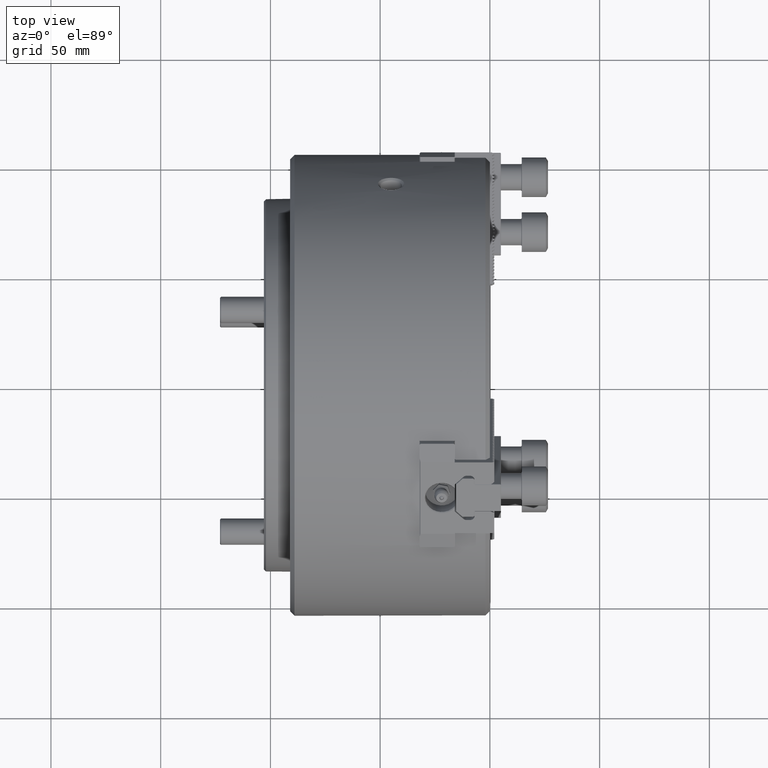
[diagram: clean part render]
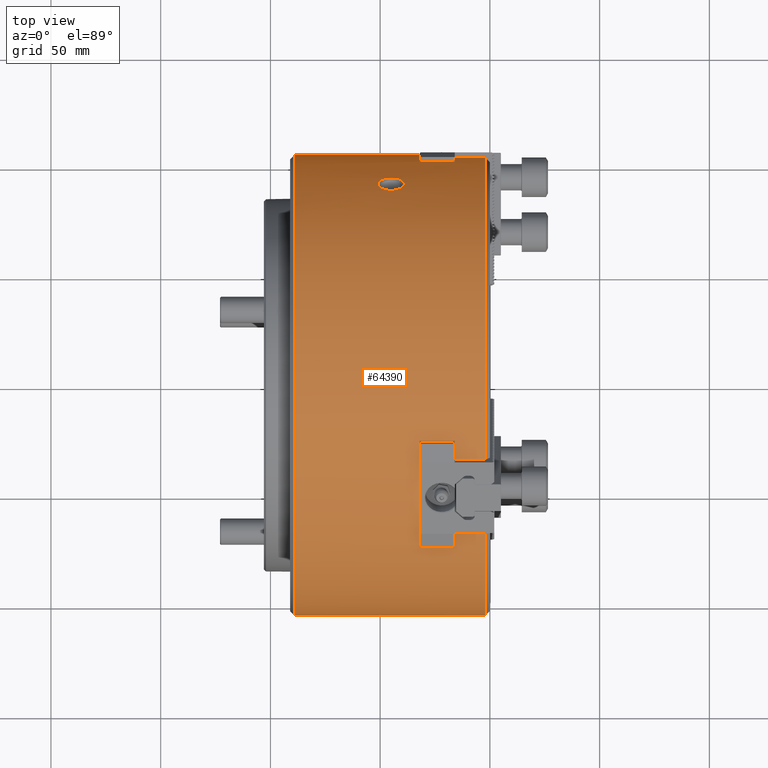
[diagram: same view with one face highlighted and labeled with its STEP entity id]
A machine part, top view. The second image highlights one B-rep face of the part: STEP entity #64390.
In plain terms, the highlighted cylindrical surface (bore or boss wall) has radius 105 mm, axis along (-1, 0, 0).
Its self-contained STEP definition (entity closure, byte-faithful):
#1532=LINE('',#86500,#6245);
#1971=LINE('',#87519,#6684);
#2627=LINE('',#89630,#7340);
#3067=LINE('',#90651,#7780);
#3723=LINE('',#92762,#8436);
#4163=LINE('',#93783,#8876);
#4673=LINE('',#95518,#9386);
#4697=LINE('',#95738,#9410);
#4720=LINE('',#95957,#9433);
#4721=LINE('',#95965,#9434);
#4722=LINE('',#95970,#9435);
#4723=LINE('',#95978,#9436);
#6245=VECTOR('',#72622,1000.);
#6684=VECTOR('',#73551,1000.);
#7340=VECTOR('',#74771,1000.);
#7780=VECTOR('',#75703,1000.);
#8436=VECTOR('',#76923,1000.);
#8876=VECTOR('',#77855,1000.);
#9386=VECTOR('',#79579,1000.);
#9410=VECTOR('',#79681,1000.);
#9433=VECTOR('',#79840,1000.);
#9434=VECTOR('',#79851,1000.);
#9435=VECTOR('',#79856,1000.);
#9436=VECTOR('',#79867,1000.);
#9788=ELLIPSE('',#68062,148.492424049174,105.);
#9789=ELLIPSE('',#68064,148.492424049174,105.);
#9790=ELLIPSE('',#68069,148.492424049174,105.);
#9791=ELLIPSE('',#68071,148.492424049174,105.);
#9792=ELLIPSE('',#68076,148.492424049174,105.);
#9793=ELLIPSE('',#68077,148.492424049174,105.);
#10204=B_SPLINE_CURVE_WITH_KNOTS('',3,(#95988,#95989,#95990,#95991,#95992,
#95993,#95994,#95995,#95996,#95997,#95998,#95999,#96000,#96001,#96002),
 .UNSPECIFIED.,.T.,.F.,(1,1,1,1,1,1,1,1,1,1,1,1,1,1,1,1,1,1,1),(-0.00927433492825341,
-0.00463716746412671,-0.00231858373206335,0.,0.00231858373206335,0.00463716746412671,
0.00927433492825341,0.0139115023923801,0.0162300861244435,0.0185486698565068,
0.0208672535885702,0.0231858373206335,0.0278230047847602,0.0324601722488869,
0.0347787559809503,0.0370973397130137,0.039415923445077,0.0417345071771404,
0.0463716746412671),.UNSPECIFIED.);
#10205=B_SPLINE_CURVE_WITH_KNOTS('',3,(#96004,#96005,#96006,#96007,#96008,
#96009,#96010,#96011,#96012,#96013,#96014,#96015,#96016,#96017,#96018),
 .UNSPECIFIED.,.T.,.F.,(1,1,1,1,1,1,1,1,1,1,1,1,1,1,1,1,1,1,1),(-0.0115989388835901,
-0.00927915110687206,-0.00463957555343603,0.,0.00231978777671801,0.00463957555343603,
0.00695936333015404,0.00927915110687206,0.0139187266603081,0.0185583022137441,
0.0208780899904621,0.0231978777671801,0.0255176655438982,0.0278374533206162,
0.0324770288740522,0.0371166044274882,0.0394363922042062,0.0417561799809242,
0.0440759677576423),.UNSPECIFIED.);
#23983=ORIENTED_EDGE('',*,*,#31603,.F.);
#23984=ORIENTED_EDGE('',*,*,#31762,.T.);
#23985=ORIENTED_EDGE('',*,*,#28180,.T.);
#23986=ORIENTED_EDGE('',*,*,#31763,.T.);
#23987=ORIENTED_EDGE('',*,*,#31764,.T.);
#23988=ORIENTED_EDGE('',*,*,#31765,.T.);
#23989=ORIENTED_EDGE('',*,*,#25768,.T.);
#23990=ORIENTED_EDGE('',*,*,#31766,.T.);
#23991=ORIENTED_EDGE('',*,*,#27778,.T.);
#23992=ORIENTED_EDGE('',*,*,#31767,.F.);
#23993=ORIENTED_EDGE('',*,*,#30850,.F.);
#23994=ORIENTED_EDGE('',*,*,#31768,.F.);
#23995=ORIENTED_EDGE('',*,*,#25787,.F.);
#23996=ORIENTED_EDGE('',*,*,#31769,.F.);
#23997=ORIENTED_EDGE('',*,*,#31770,.F.);
#23998=ORIENTED_EDGE('',*,*,#31771,.F.);
#23999=ORIENTED_EDGE('',*,*,#30774,.T.);
#24000=ORIENTED_EDGE('',*,*,#31772,.F.);
#24001=ORIENTED_EDGE('',*,*,#31773,.T.);
#24002=ORIENTED_EDGE('',*,*,#31774,.T.);
#24003=ORIENTED_EDGE('',*,*,#25796,.T.);
#24004=ORIENTED_EDGE('',*,*,#31775,.T.);
#24005=ORIENTED_EDGE('',*,*,#30371,.T.);
#24006=ORIENTED_EDGE('',*,*,#31776,.T.);
#24007=ORIENTED_EDGE('',*,*,#29553,.F.);
#24008=ORIENTED_EDGE('',*,*,#31777,.F.);
#24009=ORIENTED_EDGE('',*,*,#25773,.F.);
#24010=ORIENTED_EDGE('',*,*,#31778,.F.);
#24011=ORIENTED_EDGE('',*,*,#31779,.F.);
#24012=ORIENTED_EDGE('',*,*,#31780,.F.);
#24013=ORIENTED_EDGE('',*,*,#29477,.T.);
#24014=ORIENTED_EDGE('',*,*,#31781,.F.);
#24015=ORIENTED_EDGE('',*,*,#31677,.T.);
#24016=ORIENTED_EDGE('',*,*,#31782,.T.);
#24017=ORIENTED_EDGE('',*,*,#25782,.T.);
#24018=ORIENTED_EDGE('',*,*,#31783,.T.);
#24019=ORIENTED_EDGE('',*,*,#29074,.T.);
#24020=ORIENTED_EDGE('',*,*,#31659,.F.);
#24021=ORIENTED_EDGE('',*,*,#28256,.F.);
#24022=ORIENTED_EDGE('',*,*,#31784,.F.);
#24023=ORIENTED_EDGE('',*,*,#25759,.F.);
#24024=ORIENTED_EDGE('',*,*,#31785,.F.);
#24025=ORIENTED_EDGE('',*,*,#31786,.T.);
#24026=ORIENTED_EDGE('',*,*,#31787,.F.);
#24027=ORIENTED_EDGE('',*,*,#31788,.F.);
#25759=EDGE_CURVE('',#32391,#32392,#36850,.T.);
#25768=EDGE_CURVE('',#32401,#32400,#36851,.T.);
#25773=EDGE_CURVE('',#32405,#32406,#36852,.T.);
#25782=EDGE_CURVE('',#32415,#32414,#36853,.T.);
#25787=EDGE_CURVE('',#32419,#32420,#36854,.T.);
#25796=EDGE_CURVE('',#32429,#32428,#36855,.T.);
#27778=EDGE_CURVE('',#33906,#33905,#1532,.T.);
#28180=EDGE_CURVE('',#34075,#33865,#37294,.F.);
#28256=EDGE_CURVE('',#34105,#34106,#1971,.T.);
#29074=EDGE_CURVE('',#34765,#34764,#2627,.T.);
#29477=EDGE_CURVE('',#34934,#34724,#37375,.F.);
#29553=EDGE_CURVE('',#34964,#34965,#3067,.T.);
#30371=EDGE_CURVE('',#35624,#35623,#3723,.T.);
#30774=EDGE_CURVE('',#35793,#35583,#37456,.F.);
#30850=EDGE_CURVE('',#35823,#35824,#4163,.T.);
#31603=EDGE_CURVE('',#36315,#36316,#4673,.T.);
#31659=EDGE_CURVE('',#34106,#34764,#37692,.T.);
#31677=EDGE_CURVE('',#36368,#36367,#4697,.T.);
#31762=EDGE_CURVE('',#36315,#34075,#37738,.T.);
#31763=EDGE_CURVE('',#33865,#36422,#37739,.T.);
#31764=EDGE_CURVE('',#36422,#36423,#4720,.T.);
#31765=EDGE_CURVE('',#36423,#32401,#37740,.T.);
#31766=EDGE_CURVE('',#32400,#33906,#9788,.T.);
#31767=EDGE_CURVE('',#35824,#33905,#37741,.T.);
#31768=EDGE_CURVE('',#32420,#35823,#9789,.T.);
#31769=EDGE_CURVE('',#36424,#32419,#37742,.T.);
#31770=EDGE_CURVE('',#36425,#36424,#4721,.T.);
#31771=EDGE_CURVE('',#35793,#36425,#37743,.T.);
#31772=EDGE_CURVE('',#36426,#35583,#37744,.T.);
#31773=EDGE_CURVE('',#36426,#36427,#4722,.T.);
#31774=EDGE_CURVE('',#36427,#32429,#37745,.T.);
#31775=EDGE_CURVE('',#32428,#35624,#9790,.T.);
#31776=EDGE_CURVE('',#35623,#34965,#37746,.T.);
#31777=EDGE_CURVE('',#32406,#34964,#9791,.T.);
#31778=EDGE_CURVE('',#36428,#32405,#37747,.T.);
#31779=EDGE_CURVE('',#36429,#36428,#4723,.T.);
#31780=EDGE_CURVE('',#34934,#36429,#37748,.T.);
#31781=EDGE_CURVE('',#36368,#34724,#37749,.T.);
#31782=EDGE_CURVE('',#36367,#32415,#37750,.T.);
#31783=EDGE_CURVE('',#32414,#34765,#9792,.T.);
#31784=EDGE_CURVE('',#32392,#34105,#9793,.T.);
#31785=EDGE_CURVE('',#36316,#32391,#37751,.T.);
#31786=EDGE_CURVE('',#36430,#36430,#37752,.T.);
#31787=EDGE_CURVE('',#36431,#36431,#10204,.T.);
#31788=EDGE_CURVE('',#36432,#36432,#10205,.T.);
#32391=VERTEX_POINT('',#81628);
#32392=VERTEX_POINT('',#81629);
#32400=VERTEX_POINT('',#81646);
#32401=VERTEX_POINT('',#81648);
#32405=VERTEX_POINT('',#81658);
#32406=VERTEX_POINT('',#81659);
#32414=VERTEX_POINT('',#81676);
#32415=VERTEX_POINT('',#81678);
#32419=VERTEX_POINT('',#81688);
#32420=VERTEX_POINT('',#81689);
#32428=VERTEX_POINT('',#81706);
#32429=VERTEX_POINT('',#81708);
#33865=VERTEX_POINT('',#86247);
#33905=VERTEX_POINT('',#86499);
#33906=VERTEX_POINT('',#86501);
#34075=VERTEX_POINT('',#87293);
#34105=VERTEX_POINT('',#87518);
#34106=VERTEX_POINT('',#87520);
#34724=VERTEX_POINT('',#89377);
#34764=VERTEX_POINT('',#89629);
#34765=VERTEX_POINT('',#89631);
#34934=VERTEX_POINT('',#90425);
#34964=VERTEX_POINT('',#90650);
#34965=VERTEX_POINT('',#90652);
#35583=VERTEX_POINT('',#92509);
#35623=VERTEX_POINT('',#92761);
#35624=VERTEX_POINT('',#92763);
#35793=VERTEX_POINT('',#93557);
#35823=VERTEX_POINT('',#93782);
#35824=VERTEX_POINT('',#93784);
#36315=VERTEX_POINT('',#95517);
#36316=VERTEX_POINT('',#95519);
#36367=VERTEX_POINT('',#95737);
#36368=VERTEX_POINT('',#95739);
#36422=VERTEX_POINT('',#95956);
#36423=VERTEX_POINT('',#95958);
#36424=VERTEX_POINT('',#95964);
#36425=VERTEX_POINT('',#95966);
#36426=VERTEX_POINT('',#95969);
#36427=VERTEX_POINT('',#95971);
#36428=VERTEX_POINT('',#95977);
#36429=VERTEX_POINT('',#95979);
#36430=VERTEX_POINT('',#95987);
#36431=VERTEX_POINT('',#96003);
#36432=VERTEX_POINT('',#96019);
#36850=CIRCLE('',#64961,105.);
#36851=CIRCLE('',#64963,105.);
#36852=CIRCLE('',#64965,105.);
#36853=CIRCLE('',#64967,105.);
#36854=CIRCLE('',#64969,105.);
#36855=CIRCLE('',#64971,105.);
#37294=CIRCLE('',#66255,105.);
#37375=CIRCLE('',#66783,105.);
#37456=CIRCLE('',#67311,105.);
#37692=CIRCLE('',#67984,105.);
#37738=CIRCLE('',#68059,105.);
#37739=CIRCLE('',#68060,105.);
#37740=CIRCLE('',#68061,105.);
#37741=CIRCLE('',#68063,105.);
#37742=CIRCLE('',#68065,105.);
#37743=CIRCLE('',#68066,105.);
#37744=CIRCLE('',#68067,105.);
#37745=CIRCLE('',#68068,105.);
#37746=CIRCLE('',#68070,105.);
#37747=CIRCLE('',#68072,105.);
#37748=CIRCLE('',#68073,105.);
#37749=CIRCLE('',#68074,105.);
#37750=CIRCLE('',#68075,105.);
#37751=CIRCLE('',#68078,105.);
#37752=CIRCLE('',#68079,105.);
#40554=EDGE_LOOP('',(#23983,#23984,#23985,#23986,#23987,#23988,#23989,#23990,
#23991,#23992,#23993,#23994,#23995,#23996,#23997,#23998,#23999,#24000,#24001,
#24002,#24003,#24004,#24005,#24006,#24007,#24008,#24009,#24010,#24011,#24012,
#24013,#24014,#24015,#24016,#24017,#24018,#24019,#24020,#24021,#24022,#24023,
#24024));
#40555=EDGE_LOOP('',(#24025));
#40556=EDGE_LOOP('',(#24026));
#40557=EDGE_LOOP('',(#24027));
#43634=FACE_BOUND('',#40554,.T.);
#43635=FACE_BOUND('',#40555,.T.);
#43636=FACE_BOUND('',#40556,.T.);
#43637=FACE_BOUND('',#40557,.T.);
#44408=CYLINDRICAL_SURFACE('',#68058,105.);
#64390=ADVANCED_FACE('',(#43634,#43635,#43636,#43637),#44408,.T.);
#64961=AXIS2_PLACEMENT_3D('',#81627,#69110,#69111);
#64963=AXIS2_PLACEMENT_3D('',#81647,#69122,#69123);
#64965=AXIS2_PLACEMENT_3D('',#81657,#69130,#69131);
#64967=AXIS2_PLACEMENT_3D('',#81677,#69142,#69143);
#64969=AXIS2_PLACEMENT_3D('',#81687,#69150,#69151);
#64971=AXIS2_PLACEMENT_3D('',#81707,#69162,#69163);
#66255=AXIS2_PLACEMENT_3D('',#87292,#73419,#73420);
#66783=AXIS2_PLACEMENT_3D('',#90424,#75571,#75572);
#67311=AXIS2_PLACEMENT_3D('',#93556,#77723,#77724);
#67984=AXIS2_PLACEMENT_3D('',#95689,#79655,#79656);
#68058=AXIS2_PLACEMENT_3D('',#95953,#79834,#79835);
#68059=AXIS2_PLACEMENT_3D('',#95954,#79836,#79837);
#68060=AXIS2_PLACEMENT_3D('',#95955,#79838,#79839);
#68061=AXIS2_PLACEMENT_3D('',#95959,#79841,#79842);
#68062=AXIS2_PLACEMENT_3D('',#95960,#79843,#79844);
#68063=AXIS2_PLACEMENT_3D('',#95961,#79845,#79846);
#68064=AXIS2_PLACEMENT_3D('',#95962,#79847,#79848);
#68065=AXIS2_PLACEMENT_3D('',#95963,#79849,#79850);
#68066=AXIS2_PLACEMENT_3D('',#95967,#79852,#79853);
#68067=AXIS2_PLACEMENT_3D('',#95968,#79854,#79855);
#68068=AXIS2_PLACEMENT_3D('',#95972,#79857,#79858);
#68069=AXIS2_PLACEMENT_3D('',#95973,#79859,#79860);
#68070=AXIS2_PLACEMENT_3D('',#95974,#79861,#79862);
#68071=AXIS2_PLACEMENT_3D('',#95975,#79863,#79864);
#68072=AXIS2_PLACEMENT_3D('',#95976,#79865,#79866);
#68073=AXIS2_PLACEMENT_3D('',#95980,#79868,#79869);
#68074=AXIS2_PLACEMENT_3D('',#95981,#79870,#79871);
#68075=AXIS2_PLACEMENT_3D('',#95982,#79872,#79873);
#68076=AXIS2_PLACEMENT_3D('',#95983,#79874,#79875);
#68077=AXIS2_PLACEMENT_3D('',#95984,#79876,#79877);
#68078=AXIS2_PLACEMENT_3D('',#95985,#79878,#79879);
#68079=AXIS2_PLACEMENT_3D('',#95986,#79880,#79881);
#69110=DIRECTION('',(-1.,-6.08902011217469E-30,-4.36408421629386E-16));
#69111=DIRECTION('',(-4.36408421629386E-16,1.3988810110277E-14,1.));
#69122=DIRECTION('',(1.,0.,-4.36408421629386E-16));
#69123=DIRECTION('',(-4.36408421629386E-16,0.,-1.));
#69130=DIRECTION('',(-1.,3.7794077955652E-16,2.18204210814689E-16));
#69131=DIRECTION('',(-4.36408421629386E-16,-0.866025403784443,-0.499999999999992));
#69142=DIRECTION('',(1.,3.77940779556521E-16,2.1820421081469E-16));
#69143=DIRECTION('',(-4.36408421629386E-16,0.866025403784443,0.499999999999992));
#69150=DIRECTION('',(-1.,-3.77940779556518E-16,2.18204210814695E-16));
#69151=DIRECTION('',(-4.36408421629386E-16,0.866025403784438,-0.500000000000001));
#69162=DIRECTION('',(1.,-3.77940779556518E-16,2.18204210814695E-16));
#69163=DIRECTION('',(-4.36408421629386E-16,-0.866025403784438,0.500000000000001));
#72622=DIRECTION('',(1.,0.,0.));
#73419=DIRECTION('',(1.,0.,-3.12562788464268E-16));
#73420=DIRECTION('',(-3.12562788464268E-16,0.,-1.));
#73551=DIRECTION('',(1.,0.,0.));
#74771=DIRECTION('',(1.,0.,0.));
#75571=DIRECTION('',(1.,-4.22544819437838E-16,4.6739289011769E-16));
#75572=DIRECTION('',(4.6739289011769E-16,0.,-1.));
#75703=DIRECTION('',(1.,0.,0.));
#76923=DIRECTION('',(1.,0.,0.));
#77723=DIRECTION('',(1.,3.94789243822226E-16,4.19318822958113E-16));
#77724=DIRECTION('',(4.19318822958113E-16,0.,-1.));
#77855=DIRECTION('',(1.,0.,0.));
#79579=DIRECTION('',(1.,0.,0.));
#79655=DIRECTION('',(1.,0.,0.));
#79656=DIRECTION('',(0.,0.866025403784443,0.499999999999992));
#79681=DIRECTION('',(1.,0.,0.));
#79834=DIRECTION('',(-1.,0.,0.));
#79835=DIRECTION('',(0.,0.,-1.));
#79836=DIRECTION('',(-1.,0.,6.0601693483906E-16));
#79837=DIRECTION('',(6.0601693483906E-16,0.,1.));
#79838=DIRECTION('',(-1.,0.,6.0601693483906E-16));
#79839=DIRECTION('',(6.0601693483906E-16,0.,1.));
#79840=DIRECTION('',(1.,0.,0.));
#79841=DIRECTION('',(1.,0.,-4.36408421629386E-16));
#79842=DIRECTION('',(-4.36408421629386E-16,0.,-1.));
#79843=DIRECTION('',(0.707106781186552,0.,-0.707106781186543));
#79844=DIRECTION('',(0.707106781186543,0.,0.707106781186552));
#79845=DIRECTION('',(1.,0.,0.));
#79846=DIRECTION('',(0.,0.,-1.));
#79847=DIRECTION('',(-0.707106781186552,-0.612372435695789,0.353553390593275));
#79848=DIRECTION('',(0.707106781186543,-0.612372435695797,0.353553390593279));
#79849=DIRECTION('',(-1.,-3.77940779556518E-16,2.18204210814695E-16));
#79850=DIRECTION('',(-4.36408421629386E-16,0.866025403784438,-0.500000000000001));
#79851=DIRECTION('',(1.,0.,0.));
#79852=DIRECTION('',(1.,5.24826060694203E-16,-3.03008467419532E-16));
#79853=DIRECTION('',(6.06016934839059E-16,-0.866025403784438,0.500000000000001));
#79854=DIRECTION('',(1.,5.24826060694203E-16,-3.03008467419532E-16));
#79855=DIRECTION('',(6.06016934839059E-16,-0.866025403784438,0.500000000000001));
#79856=DIRECTION('',(1.,0.,0.));
#79857=DIRECTION('',(1.,-3.77940779556518E-16,2.18204210814695E-16));
#79858=DIRECTION('',(-4.36408421629386E-16,-0.866025403784438,0.500000000000001));
#79859=DIRECTION('',(0.707106781186552,-0.612372435695789,0.353553390593275));
#79860=DIRECTION('',(0.707106781186543,0.612372435695797,-0.353553390593279));
#79861=DIRECTION('',(-1.,0.,0.));
#79862=DIRECTION('',(0.,-0.866025403784443,-0.499999999999992));
#79863=DIRECTION('',(-0.707106781186552,0.612372435695794,0.353553390593266));
#79864=DIRECTION('',(0.707106781186543,0.612372435695802,0.35355339059327));
#79865=DIRECTION('',(-1.,3.7794077955652E-16,2.18204210814689E-16));
#79866=DIRECTION('',(-4.36408421629386E-16,-0.866025403784443,-0.499999999999992));
#79867=DIRECTION('',(1.,0.,0.));
#79868=DIRECTION('',(1.,-5.24826060694207E-16,-3.03008467419525E-16));
#79869=DIRECTION('',(6.06016934839059E-16,0.866025403784443,0.499999999999992));
#79870=DIRECTION('',(1.,-5.24826060694207E-16,-3.03008467419525E-16));
#79871=DIRECTION('',(6.06016934839059E-16,0.866025403784443,0.499999999999992));
#79872=DIRECTION('',(1.,3.77940779556521E-16,2.1820421081469E-16));
#79873=DIRECTION('',(-4.36408421629386E-16,0.866025403784443,0.499999999999992));
#79874=DIRECTION('',(0.707106781186552,0.612372435695794,0.353553390593266));
#79875=DIRECTION('',(0.707106781186543,-0.612372435695802,-0.35355339059327));
#79876=DIRECTION('',(-0.707106781186552,-9.88098491916389E-15,-0.707106781186543));
#79877=DIRECTION('',(0.707106781186543,-9.93649607039515E-15,-0.707106781186552));
#79878=DIRECTION('',(-1.,-6.08902011217469E-30,-4.36408421629386E-16));
#79879=DIRECTION('',(-4.36408421629386E-16,1.3988810110277E-14,1.));
#79880=DIRECTION('',(1.,0.,0.));
#79881=DIRECTION('',(0.,0.,-1.));
#81627=CARTESIAN_POINT('',(-16.,0.,0.));
#81628=CARTESIAN_POINT('',(-16.,101.574800024416,26.5999999999995));
#81629=CARTESIAN_POINT('',(-16.,103.284994069807,18.8999999999986));
#81646=CARTESIAN_POINT('',(-16.,103.284994069807,-18.9));
#81647=CARTESIAN_POINT('',(-16.,0.,0.));
#81648=CARTESIAN_POINT('',(-16.,101.574800024415,-26.6000000000005));
#81657=CARTESIAN_POINT('',(-16.,0.,0.));
#81658=CARTESIAN_POINT('',(-16.,-73.8236757528726,74.6663572054692));
#81659=CARTESIAN_POINT('',(-16.0000000000001,-68.0103771664286,79.9974286941783));
#81676=CARTESIAN_POINT('',(-16.,-35.2746169033765,98.897428694178));
#81677=CARTESIAN_POINT('',(-16.,0.,0.));
#81678=CARTESIAN_POINT('',(-16.,-27.7511242715401,101.266357205468));
#81687=CARTESIAN_POINT('',(-16.,0.,0.));
#81688=CARTESIAN_POINT('',(-16.,-27.751124271543,-101.266357205468));
#81689=CARTESIAN_POINT('',(-16.,-35.274616903378,-98.8974286941774));
#81706=CARTESIAN_POINT('',(-16.,-68.0103771664296,-79.9974286941773));
#81707=CARTESIAN_POINT('',(-16.,0.,0.));
#81708=CARTESIAN_POINT('',(-16.,-73.8236757528748,-74.6663572054671));
#86247=CARTESIAN_POINT('',(-31.9999999999996,101.574800024415,-26.6000000000005));
#86499=CARTESIAN_POINT('',(-2.,103.357389672921,-18.5000000000005));
#86500=CARTESIAN_POINT('',(4.55,103.357389672921,-18.5));
#86501=CARTESIAN_POINT('',(-15.6000000000005,103.357389672921,-18.5000000000005));
#87292=CARTESIAN_POINT('',(-31.9999999999996,0.,0.));
#87293=CARTESIAN_POINT('',(-31.9999999999996,101.574800024416,26.5999999999995));
#87518=CARTESIAN_POINT('',(-15.6,103.357389672921,18.4999999999986));
#87519=CARTESIAN_POINT('',(4.55,103.357389672921,18.4999999999986));
#87520=CARTESIAN_POINT('',(-2.,103.357389672921,18.4999999999986));
#89377=CARTESIAN_POINT('',(-32.,-27.75112427154,101.266357205468));
#89629=CARTESIAN_POINT('',(-2.,-35.6572248664473,98.7601251255971));
#89630=CARTESIAN_POINT('',(4.55,-35.6572248664473,98.7601251255971));
#89631=CARTESIAN_POINT('',(-15.6,-35.6572248664474,98.7601251255972));
#90424=CARTESIAN_POINT('',(-31.9999999999996,0.,0.));
#90425=CARTESIAN_POINT('',(-32.,-73.8236757528723,74.6663572054695));
#90650=CARTESIAN_POINT('',(-15.6,-67.7001648064712,80.2601251255979));
#90651=CARTESIAN_POINT('',(4.55,-67.7001648064718,80.2601251255974));
#90652=CARTESIAN_POINT('',(-2.,-67.7001648064712,80.2601251255979));
#92509=CARTESIAN_POINT('',(-32.,-73.8236757528748,-74.6663572054671));
#92761=CARTESIAN_POINT('',(-2.,-67.7001648064729,-80.2601251255965));
#92762=CARTESIAN_POINT('',(4.55,-67.7001648064729,-80.2601251255965));
#92763=CARTESIAN_POINT('',(-15.6000000000008,-67.7001648064736,-80.2601251255959));
#93556=CARTESIAN_POINT('',(-31.9999999999996,0.,0.));
#93557=CARTESIAN_POINT('',(-32.,-27.7511242715434,-101.266357205468));
#93782=CARTESIAN_POINT('',(-15.6,-35.6572248664496,-98.7601251255964));
#93783=CARTESIAN_POINT('',(4.55,-35.6572248664487,-98.7601251255966));
#93784=CARTESIAN_POINT('',(-2.,-35.6572248664496,-98.7601251255964));
#95517=CARTESIAN_POINT('',(-32.,101.402354509154,27.2499999999986));
#95518=CARTESIAN_POINT('',(4.55,101.402354509154,27.2499999999986));
#95519=CARTESIAN_POINT('',(-16.,101.402354509154,27.2499999999986));
#95689=CARTESIAN_POINT('',(-2.,0.,0.));
#95737=CARTESIAN_POINT('',(-16.,-27.1019850014497,101.442015008482));
#95738=CARTESIAN_POINT('',(4.55,-27.1019850014497,101.442015008482));
#95739=CARTESIAN_POINT('',(-32.,-27.1019850014497,101.442015008482));
#95953=CARTESIAN_POINT('',(4.55,0.,0.));
#95954=CARTESIAN_POINT('',(-32.,0.,0.));
#95955=CARTESIAN_POINT('',(-32.,0.,0.));
#95956=CARTESIAN_POINT('',(-32.,101.402354509153,-27.25));
#95957=CARTESIAN_POINT('',(4.55,101.402354509153,-27.25));
#95958=CARTESIAN_POINT('',(-16.,101.402354509153,-27.25));
#95959=CARTESIAN_POINT('',(-16.,0.,0.));
#95960=CARTESIAN_POINT('',(2.89999999999976,0.,0.));
#95961=CARTESIAN_POINT('',(-2.,0.,0.));
#95962=CARTESIAN_POINT('',(2.89999999999976,0.,0.));
#95963=CARTESIAN_POINT('',(-16.,0.,0.));
#95964=CARTESIAN_POINT('',(-16.,-27.1019850014512,-101.442015008482));
#95965=CARTESIAN_POINT('',(4.55,-27.1019850014512,-101.442015008482));
#95966=CARTESIAN_POINT('',(-32.,-27.1019850014512,-101.442015008482));
#95967=CARTESIAN_POINT('',(-32.,0.,0.));
#95968=CARTESIAN_POINT('',(-32.,0.,0.));
#95969=CARTESIAN_POINT('',(-32.,-74.3003695077029,-74.1920150084819));
#95970=CARTESIAN_POINT('',(4.55,-74.3003695077029,-74.1920150084819));
#95971=CARTESIAN_POINT('',(-16.,-74.3003695077029,-74.1920150084819));
#95972=CARTESIAN_POINT('',(-16.,0.,0.));
#95973=CARTESIAN_POINT('',(2.89999999999976,0.,0.));
#95974=CARTESIAN_POINT('',(-2.,0.,0.));
#95975=CARTESIAN_POINT('',(2.89999999999976,0.,0.));
#95976=CARTESIAN_POINT('',(-16.,0.,0.));
#95977=CARTESIAN_POINT('',(-16.,-74.3003695077019,74.1920150084829));
#95978=CARTESIAN_POINT('',(4.55,-74.3003695077019,74.1920150084829));
#95979=CARTESIAN_POINT('',(-32.,-74.3003695077019,74.1920150084829));
#95980=CARTESIAN_POINT('',(-32.,0.,0.));
#95981=CARTESIAN_POINT('',(-32.,0.,0.));
#95982=CARTESIAN_POINT('',(-16.,0.,0.));
#95983=CARTESIAN_POINT('',(2.89999999999976,0.,0.));
#95984=CARTESIAN_POINT('',(2.89999999999976,0.,0.));
#95985=CARTESIAN_POINT('',(-16.,0.,0.));
#95986=CARTESIAN_POINT('',(-89.,0.,0.));
#95987=CARTESIAN_POINT('',(-89.,0.,-105.));
#95988=CARTESIAN_POINT('',(-50.9736878642194,-91.6631742748798,-51.231489987613));
#95989=CARTESIAN_POINT('',(-51.0900210174716,-90.4780880665267,-53.2970049690628));
#95990=CARTESIAN_POINT('',(-50.2442515181059,-89.3281981062211,-55.1983021619816));
#95991=CARTESIAN_POINT('',(-48.0638913875989,-88.1052979250787,-57.1307342875775));
#95992=CARTESIAN_POINT('',(-44.0213155651198,-87.5734871493244,-57.9271604509025));
#95993=CARTESIAN_POINT('',(-40.4144651374367,-88.7180335564467,-56.1875128464382));
#95994=CARTESIAN_POINT('',(-39.0243710666815,-90.2038344044695,-53.7593598572043));
#95995=CARTESIAN_POINT('',(-38.9111811544514,-91.394047989963,-51.710387571442));
#95996=CARTESIAN_POINT('',(-39.751171963206,-92.4636742393732,-49.7679748122801));
#95997=CARTESIAN_POINT('',(-41.9295567988621,-93.5282868711301,-47.7381603465152));
#95998=CARTESIAN_POINT('',(-45.979498532512,-93.9538006390121,-46.8760392813034));
#95999=CARTESIAN_POINT('',(-49.5834251271128,-93.0182771910522,-48.7391359342025));
#96000=CARTESIAN_POINT('',(-50.9736878642194,-91.6631742748798,-51.231489987613));
#96001=CARTESIAN_POINT('',(-51.0900210174716,-90.4780880665267,-53.2970049690628));
#96002=CARTESIAN_POINT('',(-50.2442515181059,-89.3281981062211,-55.1983021619816));
#96003=CARTESIAN_POINT('',(-50.9296705753686,-90.4839541078679,-53.269635337641));
#96004=CARTESIAN_POINT('',(-45.5542692512934,93.9735287483497,46.834897455918));
#96005=CARTESIAN_POINT('',(-49.288633535424,93.1480195347441,48.4879146808473));
#96006=CARTESIAN_POINT('',(-50.8664728032799,91.8396320797877,50.9138461597208));
#96007=CARTESIAN_POINT('',(-51.1369498584234,90.6760470059032,52.9595901358262));
#96008=CARTESIAN_POINT('',(-50.4467890269911,89.5090857522132,54.905526761883));
#96009=CARTESIAN_POINT('',(-48.4184818630027,88.2160696572195,56.9622681766564));
#96010=CARTESIAN_POINT('',(-44.4339298087777,87.5469483634088,57.9661645015851));
#96011=CARTESIAN_POINT('',(-40.711658188869,88.567976399585,56.4209207148384));
#96012=CARTESIAN_POINT('',(-39.1376008636245,90.0071874160704,54.0872788723817));
#96013=CARTESIAN_POINT('',(-38.8615667746965,91.1982675732851,52.0552530065151));
#96014=CARTESIAN_POINT('',(-39.5508694233502,92.3026911839243,50.0670655438285));
#96015=CARTESIAN_POINT('',(-41.5809189841151,93.4384153839308,47.9170194343552));
#96016=CARTESIAN_POINT('',(-45.5542692512934,93.9735287483497,46.834897455918));
#96017=CARTESIAN_POINT('',(-49.288633535424,93.1480195347441,48.4879146808473));
#96018=CARTESIAN_POINT('',(-50.8664728032799,91.8396320797877,50.9138461597208));
#96019=CARTESIAN_POINT('',(-49.5656223391006,92.7669243306657,49.1863573588099));